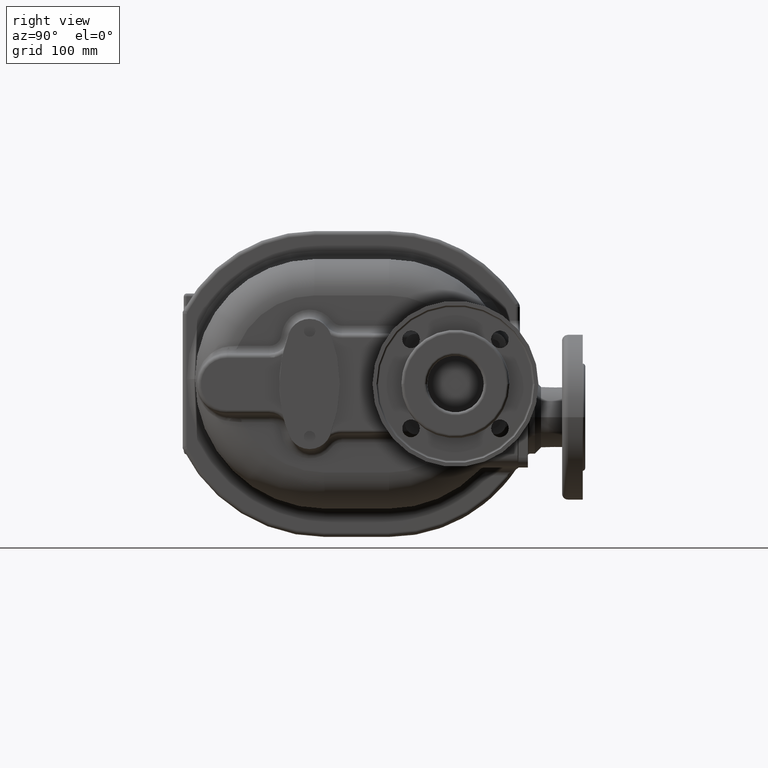
[diagram: clean part render]
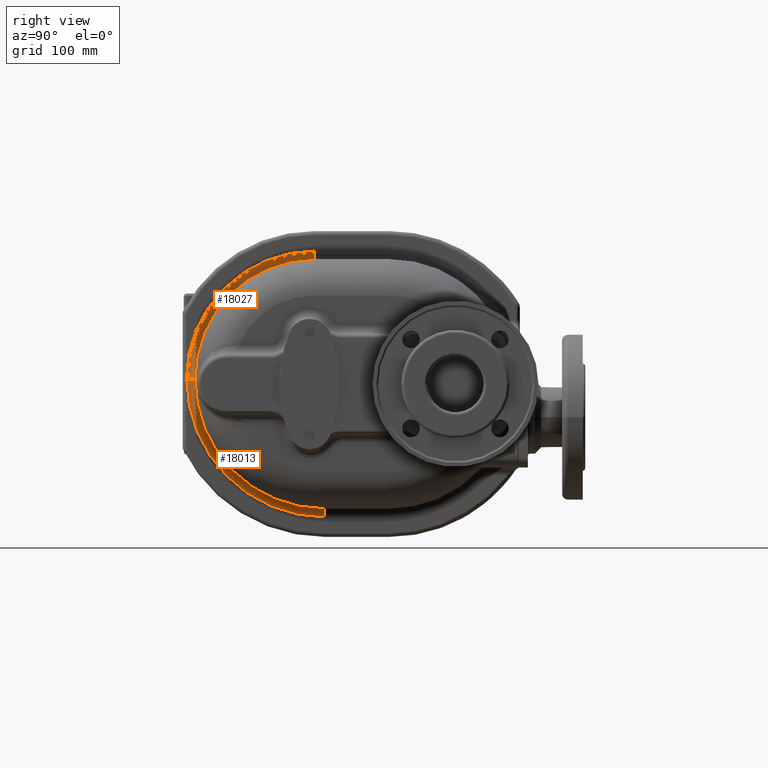
[diagram: same view with one multi-face feature highlighted, each face labeled with its STEP entity id]
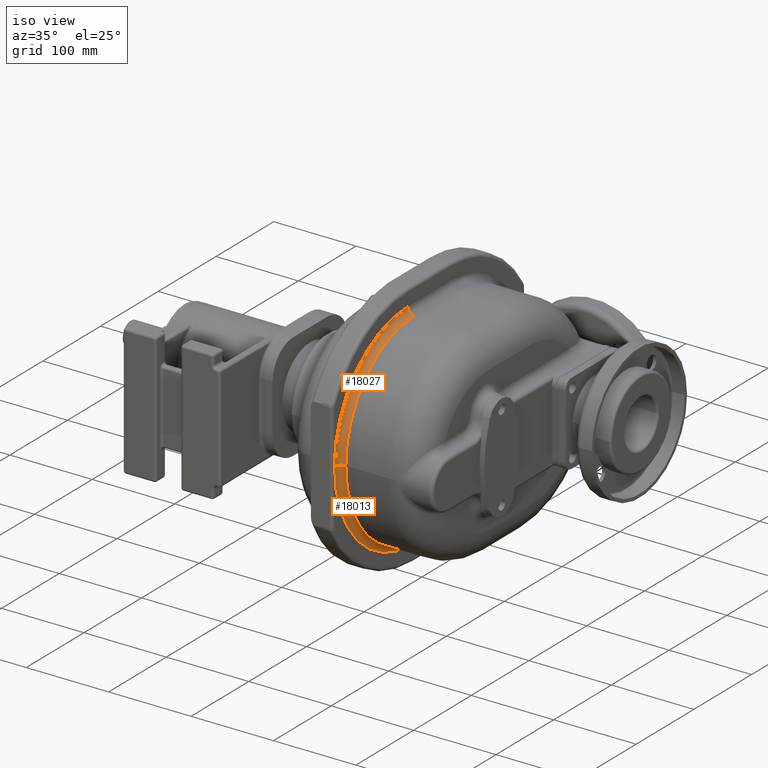
[diagram: same view with one multi-face feature highlighted, each face labeled with its STEP entity id]
A machine part, right view. The highlighted faces form ONE feature: a constant-radius fillet chain: 2 tangent blend faces with common blend radius 8 mm. The faces share edges in the B-rep.
A second angle (iso view) of the same feature is appended — it is thin or edge-on in the first view.
Their STEP definitions:
[1] entity #18027 (Torus):
#5027=CARTESIAN_POINT('',(-1.35E1,-5.E0,-5.E0));
#5028=DIRECTION('',(1.E0,0.E0,0.E0));
#5029=DIRECTION('',(0.E0,0.E0,1.E0));
#5030=AXIS2_PLACEMENT_3D('',#5027,#5028,#5029);
#5078=CARTESIAN_POINT('',(-5.5E0,-1.32E2,-5.E0));
#5079=DIRECTION('',(0.E0,0.E0,-1.E0));
#5080=DIRECTION('',(-1.E0,0.E0,0.E0));
#5081=AXIS2_PLACEMENT_3D('',#5078,#5079,#5080);
#5083=CARTESIAN_POINT('',(-5.5E0,-5.E0,1.22E2));
#5084=DIRECTION('',(0.E0,-1.E0,0.E0));
#5085=DIRECTION('',(-1.E0,0.E0,0.E0));
#5086=AXIS2_PLACEMENT_3D('',#5083,#5084,#5085);
#6166=CARTESIAN_POINT('',(-5.5E0,-5.E0,-5.E0));
#6167=DIRECTION('',(1.E0,0.E0,0.E0));
#6168=DIRECTION('',(0.E0,0.E0,1.E0));
#6169=AXIS2_PLACEMENT_3D('',#6166,#6167,#6168);
#10048=CARTESIAN_POINT('',(-1.35E1,-5.E0,1.22E2));
#10049=VERTEX_POINT('',#10048);
#10050=CARTESIAN_POINT('',(-5.5E0,-5.E0,1.14E2));
#10051=VERTEX_POINT('',#10050);
#10052=CARTESIAN_POINT('',(-1.35E1,-1.32E2,-4.999999999999E0));
#10053=VERTEX_POINT('',#10052);
#10054=CARTESIAN_POINT('',(-5.5E0,-1.24E2,-4.999999999999E0));
#10055=VERTEX_POINT('',#10054);
#18014=CARTESIAN_POINT('',(-5.5E0,-5.E0,-5.E0));
#18015=DIRECTION('',(-1.E0,0.E0,0.E0));
#18016=DIRECTION('',(0.E0,1.835596628342E-4,9.999999831529E-1));
#18017=AXIS2_PLACEMENT_3D('',#18014,#18015,#18016);
#18018=TOROIDAL_SURFACE('',#18017,1.27E2,8.E0);
#18019=ORIENTED_EDGE('',*,*,#17953,.F.);
#18021=ORIENTED_EDGE('',*,*,#18020,.T.);
#18023=ORIENTED_EDGE('',*,*,#18022,.T.);
#18024=ORIENTED_EDGE('',*,*,#18005,.F.);
#18025=EDGE_LOOP('',(#18019,#18021,#18023,#18024));
#18026=FACE_OUTER_BOUND('',#18025,.F.);
#18027=ADVANCED_FACE('',(#18026),#18018,.F.);
#5031=CIRCLE('',#5030,1.27E2);
#5082=CIRCLE('',#5081,8.E0);
#5087=CIRCLE('',#5086,8.E0);
#6170=CIRCLE('',#6169,1.19E2);
#17953=EDGE_CURVE('',#10049,#10053,#5031,.T.);
#18005=EDGE_CURVE('',#10053,#10055,#5082,.T.);
#18020=EDGE_CURVE('',#10049,#10051,#5087,.T.);
#18022=EDGE_CURVE('',#10051,#10055,#6170,.T.);
[2] entity #18013 (Torus):
#5041=CARTESIAN_POINT('',(-1.35E1,5.E0,-5.E0));
#5042=DIRECTION('',(1.E0,0.E0,0.E0));
#5043=DIRECTION('',(0.E0,-1.E0,0.E0));
#5044=AXIS2_PLACEMENT_3D('',#5041,#5042,#5043);
#5078=CARTESIAN_POINT('',(-5.5E0,-1.32E2,-5.E0));
#5079=DIRECTION('',(0.E0,0.E0,-1.E0));
#5080=DIRECTION('',(-1.E0,0.E0,0.E0));
#5081=AXIS2_PLACEMENT_3D('',#5078,#5079,#5080);
#6184=CARTESIAN_POINT('',(-5.5E0,5.E0,-5.E0));
#6185=DIRECTION('',(1.E0,0.E0,0.E0));
#6186=DIRECTION('',(0.E0,-1.E0,0.E0));
#6187=AXIS2_PLACEMENT_3D('',#6184,#6185,#6186);
#6659=CARTESIAN_POINT('',(-5.5E0,5.E0,-1.42E2));
#6660=DIRECTION('',(0.E0,1.E0,0.E0));
#6661=DIRECTION('',(-1.E0,0.E0,0.E0));
#6662=AXIS2_PLACEMENT_3D('',#6659,#6660,#6661);
#10052=CARTESIAN_POINT('',(-1.35E1,-1.32E2,-4.999999999999E0));
#10053=VERTEX_POINT('',#10052);
#10054=CARTESIAN_POINT('',(-5.5E0,-1.24E2,-4.999999999999E0));
#10055=VERTEX_POINT('',#10054);
#10058=CARTESIAN_POINT('',(-5.5E0,5.E0,-1.34E2));
#10059=VERTEX_POINT('',#10058);
#10082=CARTESIAN_POINT('',(-1.35E1,5.E0,-1.42E2));
#10083=VERTEX_POINT('',#10082);
#17999=CARTESIAN_POINT('',(-5.5E0,5.E0,-5.E0));
#18000=DIRECTION('',(-1.E0,0.E0,0.E0));
#18001=DIRECTION('',(0.E0,-9.999999856636E-1,1.693302317542E-4));
#18002=AXIS2_PLACEMENT_3D('',#17999,#18000,#18001);
#18003=TOROIDAL_SURFACE('',#18002,1.37E2,8.E0);
#18004=ORIENTED_EDGE('',*,*,#17980,.F.);
#18006=ORIENTED_EDGE('',*,*,#18005,.T.);
#18008=ORIENTED_EDGE('',*,*,#18007,.T.);
#18010=ORIENTED_EDGE('',*,*,#18009,.F.);
#18011=EDGE_LOOP('',(#18004,#18006,#18008,#18010));
#18012=FACE_OUTER_BOUND('',#18011,.F.);
#18013=ADVANCED_FACE('',(#18012),#18003,.F.);
#5045=CIRCLE('',#5044,1.37E2);
#5082=CIRCLE('',#5081,8.E0);
#6188=CIRCLE('',#6187,1.29E2);
#6663=CIRCLE('',#6662,8.E0);
#17980=EDGE_CURVE('',#10053,#10083,#5045,.T.);
#18005=EDGE_CURVE('',#10053,#10055,#5082,.T.);
#18007=EDGE_CURVE('',#10055,#10059,#6188,.T.);
#18009=EDGE_CURVE('',#10083,#10059,#6663,.T.);